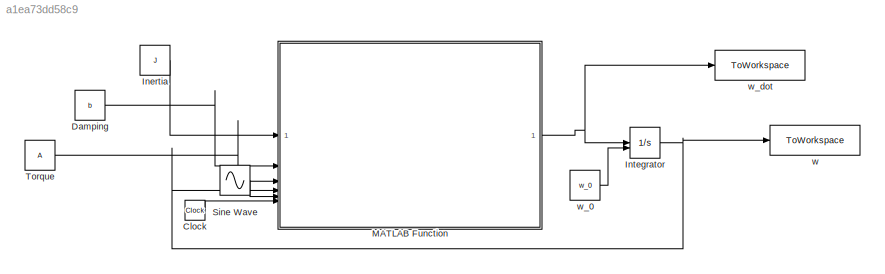
MODEL slx_a1ea73dd58c9
KIND model
CONFIG AbsTol = auto
CONFIG EnableMultiTasking = off
CONFIG FixedStep = 0.001
CONFIG MaxStep = auto
CONFIG MinStep = auto
CONFIG RelTol = 1e-3
CONFIG SampleTimeConstraint = Unconstrained
CONFIG SolverName = VariableStepAuto
CONFIG StartTime = 0.0
CONFIG StopTime = 25
BLOCK [Clock] Clock
BLOCK [Constant] Damping
  Value = b
BLOCK [Constant] Inertia
  Value = J
BLOCK [Integrator] Integrator
  InitialConditionSource = external
  LimitOutput = on
  UpperSaturationLimit = 10000
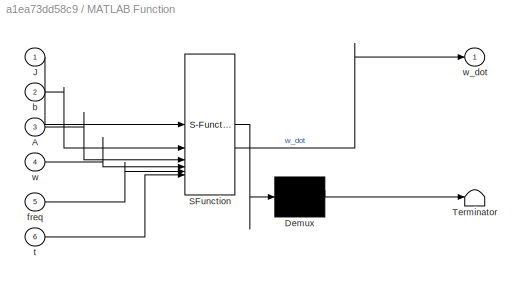
BLOCK [SubSystem] MATLAB Function
  ErrorFcn = Stateflow.Translate.translate
  PermitHierarchicalResolution = ExplicitOnly
  SFBlockType = MATLAB Function
  TreatAsAtomicUnit = on
BLOCK [Demux] MATLAB Function/ Demux 
  Outputs = 1
BLOCK [S-Function] MATLAB Function/ SFunction 
  EnableBusSupport = on
  FunctionName = sf_sfun
  PortCounts = [6 2]
  SFcnIsStateOwnerBlock = off
  SFunctionDeploymentMode = off
  Tag = Stateflow S-Function 2
BLOCK [Terminator] MATLAB Function/ Terminator 
BLOCK [Inport] MATLAB Function/A
  Port = 3
BLOCK [Inport] MATLAB Function/J
BLOCK [Inport] MATLAB Function/b
  Port = 2
BLOCK [Inport] MATLAB Function/freq
  Port = 5
BLOCK [Inport] MATLAB Function/t
  Port = 6
BLOCK [Inport] MATLAB Function/w
  Port = 4
BLOCK [Outport] MATLAB Function/w_dot
BLOCK [Sin] Sine Wave
  Amplitude = A
  Frequency = freq
  SampleTime = 0
BLOCK [Constant] Torque
  Value = A
BLOCK [ToWorkspace] w
  FixptAsFi = on
  MaxDataPoints = inf
  SampleTime = -1
  SaveFormat = Structure With Time
  VariableName = w
BLOCK [Constant] w_0
  Value = w_0
BLOCK [ToWorkspace] w_dot
  FixptAsFi = on
  MaxDataPoints = inf
  SampleTime = -1
  SaveFormat = Structure With Time
  VariableName = w_dot
LINE Clock:1 -> MATLAB Function:6
LINE Damping:1 -> MATLAB Function:2
LINE Inertia:1 -> MATLAB Function:1
NET Integrator:1 -> MATLAB Function:4, w:1
NET MATLAB Function:1 -> Integrator:1, w_dot:1
LINE Sine Wave:1 -> MATLAB Function:5
LINE Torque:1 -> MATLAB Function:3
LINE w_0:1 -> Integrator:2
note: NET lines group one-source signal fan-out (src -> all destinations, sorted); 1:1 wires keep LINE
CHART MATLAB Function states=1 transitions=1
  STATE_LABEL 'eML_blk_kernel()'
  STATE_LABEL 'SCRIPT:\nfunction w_dot = fcn(J, b, A, w, freq, t)\n\ntau_damped = b*w;\ntau = A*sin(freq*t);\n\nw_dot = (1/J)*(A-(b*w));\n\nend\n\n'
CHART  states=0 transitions=0
